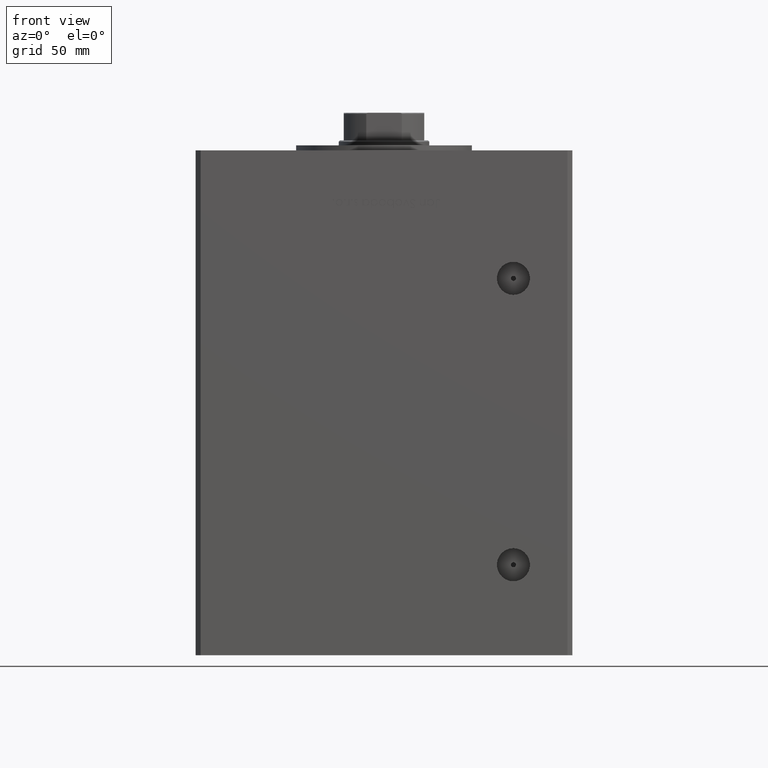
[diagram: clean part render]
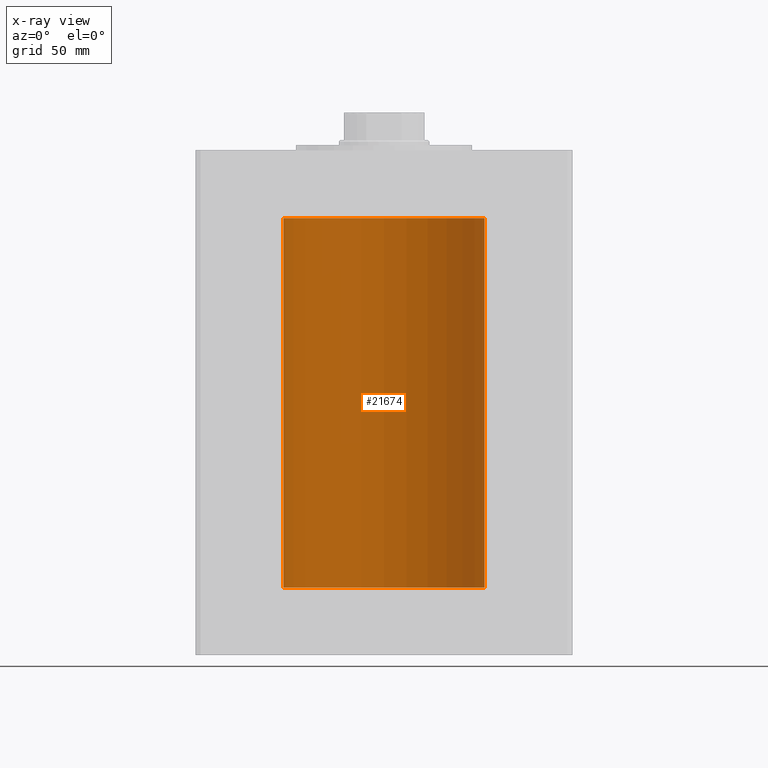
[diagram: x-ray — body ghosted, one internal face saturated and labeled with its STEP entity id]
A machine part, front view, then the same camera in x-ray: the body is ghosted and one INTERNAL B-rep face — a face not visible from any outside direction — is saturated and labeled: STEP entity #21674.
In plain terms, the highlighted cylindrical surface (partial cylindrical patch) has radius 40 mm, axis along (-0, -0, -1).
Its self-contained STEP definition (entity closure, byte-faithful):
#3621 = VERTEX_POINT ( 'NONE', #27775 ) ;
#5372 = EDGE_CURVE ( 'NONE', #39402, #17402, #50999, .T. ) ;
#5400 = CARTESIAN_POINT ( 'NONE',  ( -40.00000000000000000, 0.000000000000000000, 147.0000000000000000 ) ) ;
#7980 = VERTEX_POINT ( 'NONE', #5400 ) ;
#8234 = CYLINDRICAL_SURFACE ( 'NONE', #17587, 40.00000000000000000 ) ;
#10456 = DIRECTION ( 'NONE',  ( -0.000000000000000000, -0.000000000000000000, -1.000000000000000000 ) ) ;
#11183 = DIRECTION ( 'NONE',  ( 1.000000000000000000, 0.000000000000000000, 0.000000000000000000 ) ) ;
#11299 = DIRECTION ( 'NONE',  ( -0.000000000000000000, -0.000000000000000000, -1.000000000000000000 ) ) ;
#12388 = EDGE_CURVE ( 'NONE', #7980, #3621, #35022, .T. ) ;
#16930 = DIRECTION ( 'NONE',  ( -1.000000000000000000, 0.000000000000000000, 0.000000000000000000 ) ) ;
#17402 = VERTEX_POINT ( 'NONE', #25702 ) ;
#17587 = AXIS2_PLACEMENT_3D ( 'NONE', #44866, #24303, #16930 ) ;
#17816 = AXIS2_PLACEMENT_3D ( 'NONE', #49709, #46555, #22316 ) ;
#21036 = AXIS2_PLACEMENT_3D ( 'NONE', #46508, #38602, #11183 ) ;
#21674 = ADVANCED_FACE ( 'NONE', ( #35907 ), #8234, .F. ) ;
#22316 = DIRECTION ( 'NONE',  ( 1.000000000000000000, 0.000000000000000000, 0.000000000000000000 ) ) ;
#24303 = DIRECTION ( 'NONE',  ( -0.000000000000000000, -0.000000000000000000, -1.000000000000000000 ) ) ;
#25363 = CIRCLE ( 'NONE', #17816, 40.00000000000000000 ) ;
#25702 = CARTESIAN_POINT ( 'NONE',  ( 40.00000000000000000, 4.898587196589413026E-15, 0.000000000000000000 ) ) ;
#27775 = CARTESIAN_POINT ( 'NONE',  ( -40.00000000000000000, 0.000000000000000000, 0.000000000000000000 ) ) ;
#29816 = EDGE_CURVE ( 'NONE', #39402, #7980, #46318, .T. ) ;
#31668 = ORIENTED_EDGE ( 'NONE', *, *, #29816, .T. ) ;
#34424 = EDGE_CURVE ( 'NONE', #17402, #3621, #25363, .T. ) ;
#34773 = CARTESIAN_POINT ( 'NONE',  ( -40.00000000000000000, 0.000000000000000000, 147.0000000000000000 ) ) ;
#35022 = LINE ( 'NONE', #34773, #35819 ) ;
#35061 = ORIENTED_EDGE ( 'NONE', *, *, #5372, .F. ) ;
#35819 = VECTOR ( 'NONE', #11299, 1000.000000000000000 ) ;
#35907 = FACE_OUTER_BOUND ( 'NONE', #47942, .T. ) ;
#38602 = DIRECTION ( 'NONE',  ( -0.000000000000000000, 0.000000000000000000, 1.000000000000000000 ) ) ;
#39402 = VERTEX_POINT ( 'NONE', #49759 ) ;
#40592 = VECTOR ( 'NONE', #10456, 1000.000000000000000 ) ;
#44866 = CARTESIAN_POINT ( 'NONE',  ( 0.000000000000000000, 0.000000000000000000, 147.0000000000000000 ) ) ;
#45656 = ORIENTED_EDGE ( 'NONE', *, *, #34424, .F. ) ;
#46318 = CIRCLE ( 'NONE', #21036, 40.00000000000000000 ) ;
#46508 = CARTESIAN_POINT ( 'NONE',  ( 0.000000000000000000, 0.000000000000000000, 147.0000000000000000 ) ) ;
#46546 = CARTESIAN_POINT ( 'NONE',  ( 40.00000000000000000, 4.898587196589413026E-15, 147.0000000000000000 ) ) ;
#46555 = DIRECTION ( 'NONE',  ( -0.000000000000000000, 0.000000000000000000, 1.000000000000000000 ) ) ;
#47488 = ORIENTED_EDGE ( 'NONE', *, *, #12388, .T. ) ;
#47942 = EDGE_LOOP ( 'NONE', ( #35061, #31668, #47488, #45656 ) ) ;
#49709 = CARTESIAN_POINT ( 'NONE',  ( 0.000000000000000000, 0.000000000000000000, 0.000000000000000000 ) ) ;
#49759 = CARTESIAN_POINT ( 'NONE',  ( 40.00000000000000000, 4.898587196589413026E-15, 147.0000000000000000 ) ) ;
#50999 = LINE ( 'NONE', #46546, #40592 ) ;